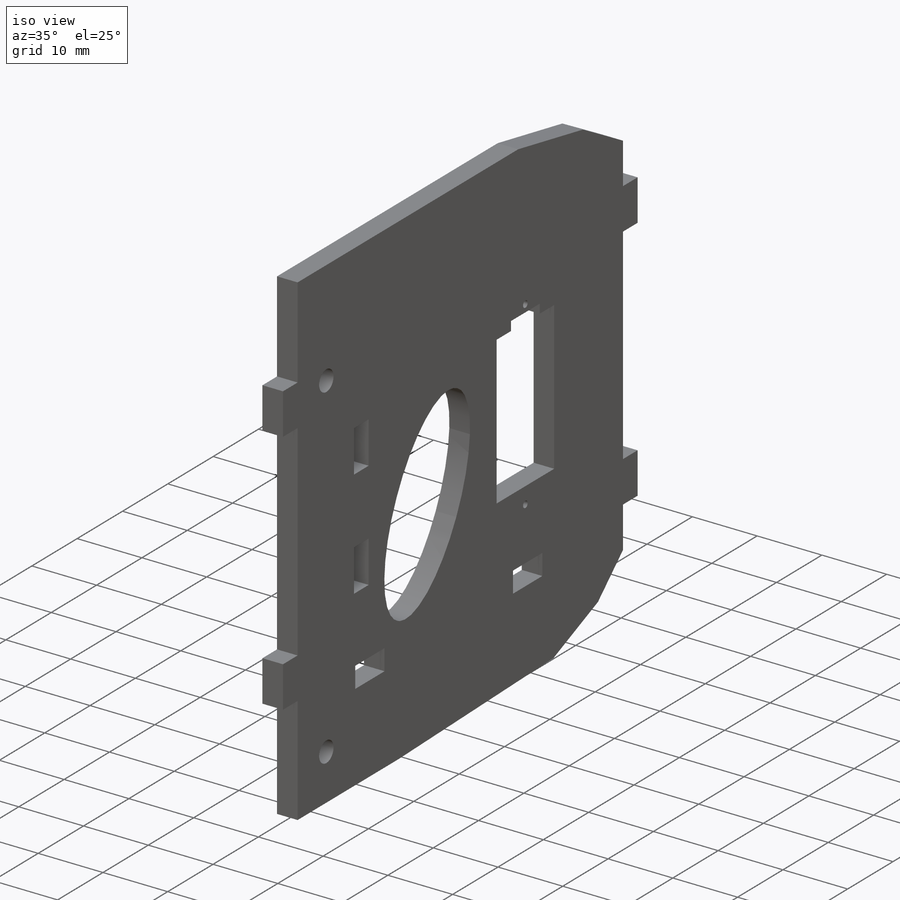
[diagram: iso view]
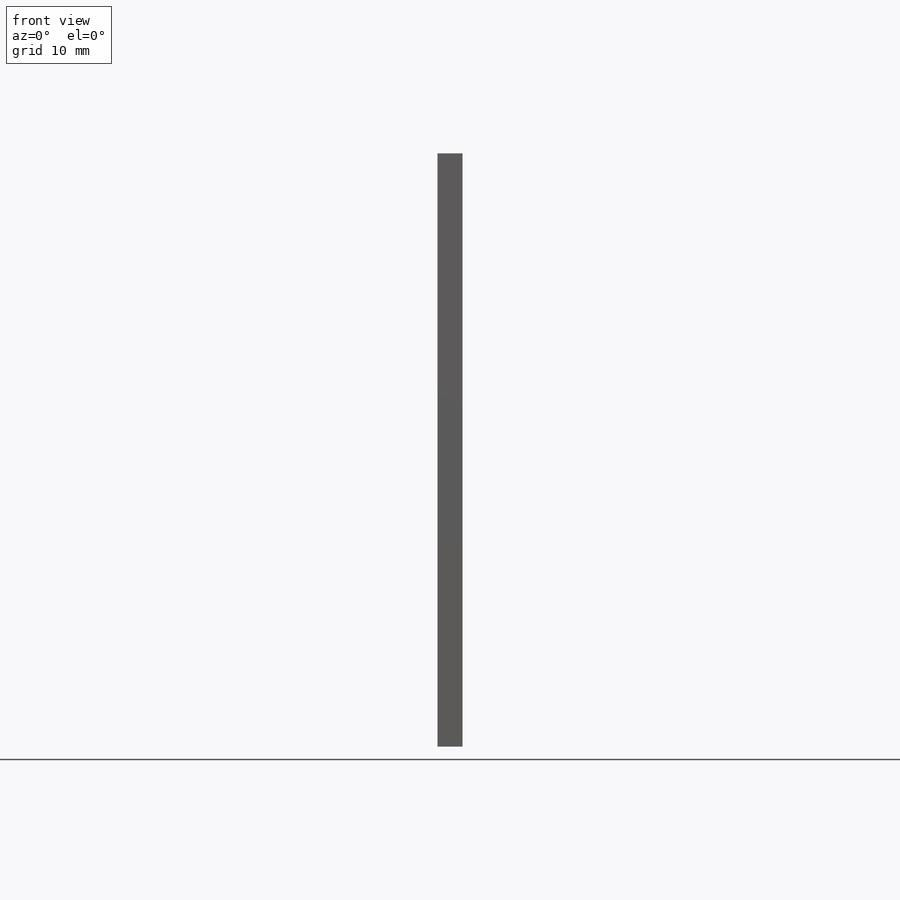
[diagram: front view]
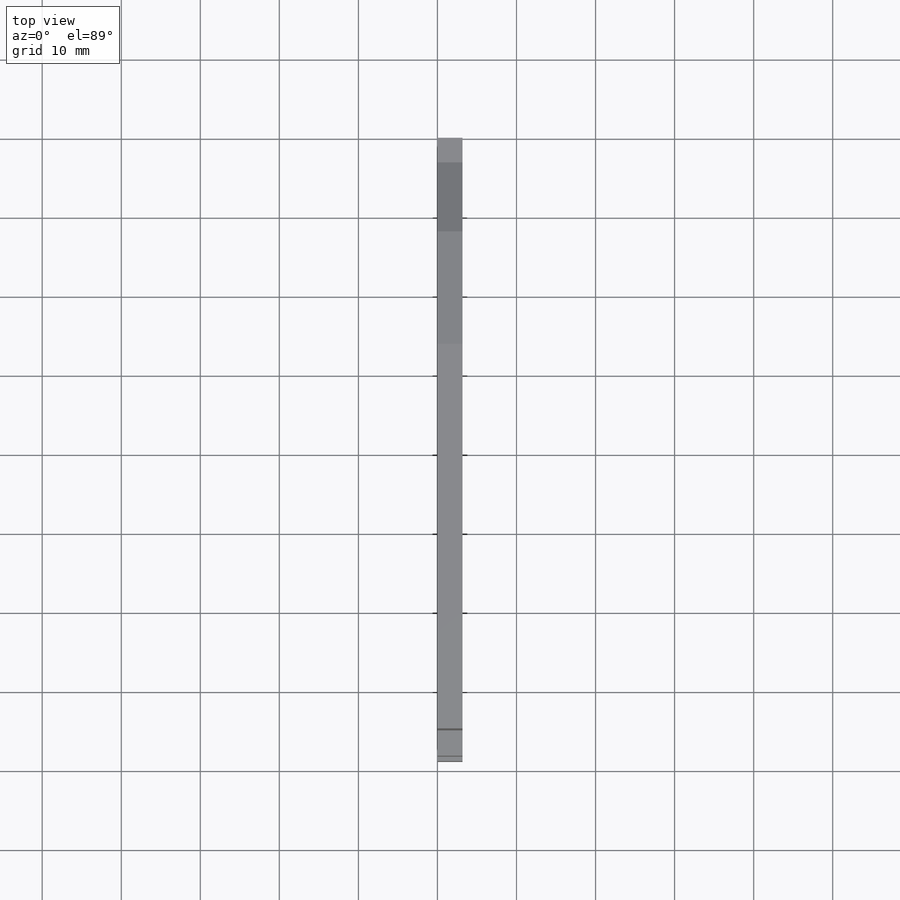
[diagram: top view]
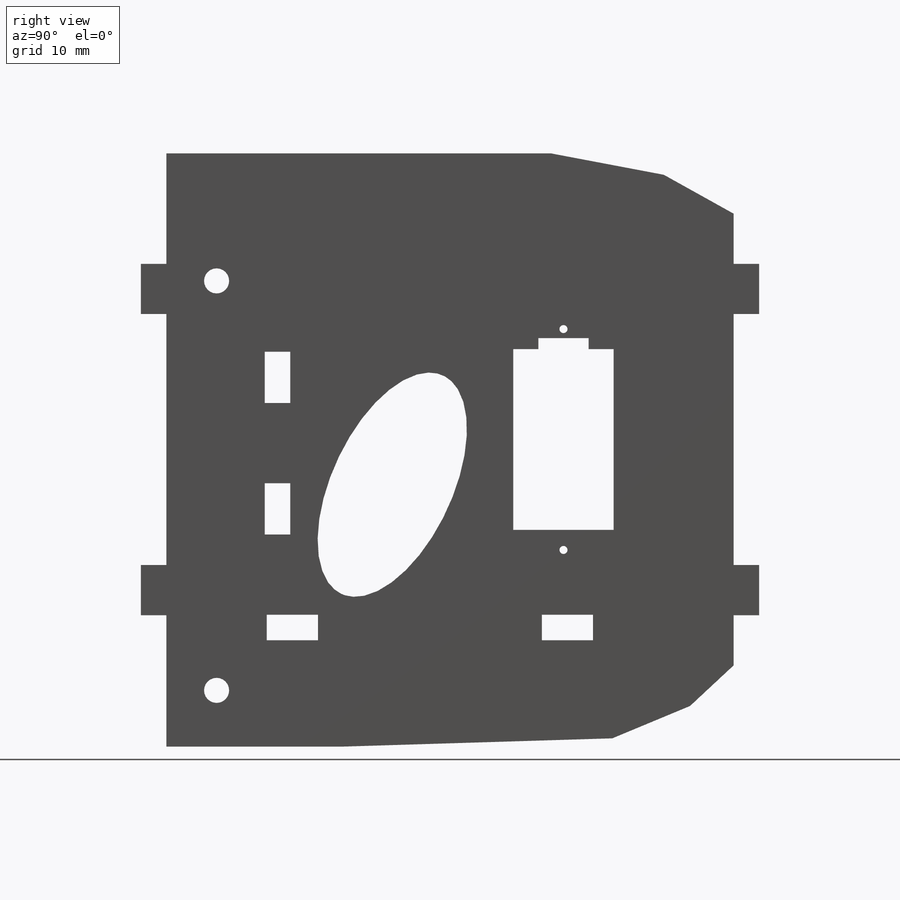
[diagram: right view]
SOLIDWORKS PART (.sldprt)
format: sldprt  version: not decoded by parser v0  size: 445,952 bytes
history: native  units: mm
features: sketch x7, cut_extrude x4, extrude x3, material x1, mirror x1 (+16 scaffold rows collapsed)
feature tree (32):
  scaffold x16  (default folders/planes/origin — collapsed)
  material  "Material <not specified>"
  sketch  "Sketch1"  dims[D1=57.15mm D2=71.755mm]
  extrude  "main body"  Depth=3.175mm
  sketch  "Sketch2"  dims[D1=6.35mm D2=3.2258mm D3=3.2258mm D4=6.35mm D5=31.75mm D6=6.35mm D7=6.35mm]
  extrude  "tabs front"  Depth=3.175mm
  mirror  "mirror of tabs (back)"
  sketch  "Sketch3"  dims[c1.D5=1.016mm c1.D6=1.016mm c1.D9=2.032mm c1.D1=27.94mm c1.D2=6.35mm c1.D3=22.86mm c1.D4=12.7mm c1.D7=1.397mm c1.D8=6.35mm c2.D9=8.636mm c2.D1=17.78mm c2.D2=7.62mm c2.D3=17.78mm c2.D4=35.56mm c2.D5=12.7mm c2.D6=6.35mm c2.D7=25.4mm c2.D8=15.24mm c3.D9=57.15mm c4.D9=30.0deg c5.D9=25.4mm c6.D9=10.0deg c6.D10=57.15mm c7.D10=30.0deg c7.D1=7.112mm c7.D2=13.97mm c7.D3=15.24mm c7.D4=29.21mm c8.D1=~50.233662mm c8.D2=23.241mm]
  cut_extrude  "cut for ear motor"  [1 undecoded]
  sketch  "Sketch4"  dims[c1.D1=6.477mm c1.D2=3.2258mm c1.D3=3.2258mm c1.D4=6.477mm c1.D5=12.446mm c1.D6=12.446mm c1.D7=31.75mm c1.D8=6.35mm c1.D9=3.175mm c1.D10=3.175mm c1.D11=6.477mm c1.D12=6.477mm c1.D13=12.7mm c1.D14=12.7mm c1.D15=3.2258mm c1.D16=3.2258mm c2.D7=10.16mm c2.D17=21.2852mm c2.D8=10.16mm c2.D13=28.321mm]
  cut_extrude  "cut for tabs"  [1 undecoded]
  sketch  "Sketch5"  dims[D1=7.62mm]
  extrude  "Boss-Extrude1"  Depth=3.175mm
  sketch  "Sketch6"  dims[D1=3.175mm D4=3.175mm D2=16.129mm D3=6.35mm D5=6.35mm D6=7.112mm]
  cut_extrude  "cut for face plate mount screw"  [1 undecoded]
  sketch  "Sketch7"  dims[c1.D1=7.62mm c1.D2=15.24mm c1.D3=66.675mm c2.D3=90.0deg c3.D3=66.675mm c4.D3=65.0deg c4.D4=28.575mm c4.D5=41.91mm]
  cut_extrude  "ellipse cut"  [1 undecoded]
decode coverage: 10 of 15 modeling features carry decoded parameters
note: ~ marks probable driven/reference dimensions
note: 4 parameter values undecoded
summary: no parameter record found for 4 features
note: suppression state not decoded; provenance and decode notes live in map.json
